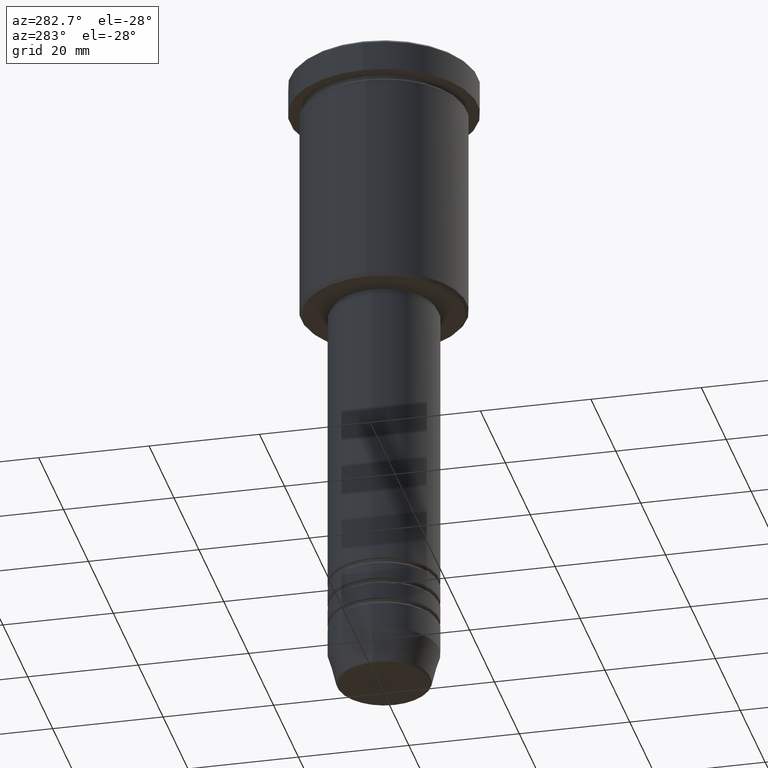
[diagram: clean part render]
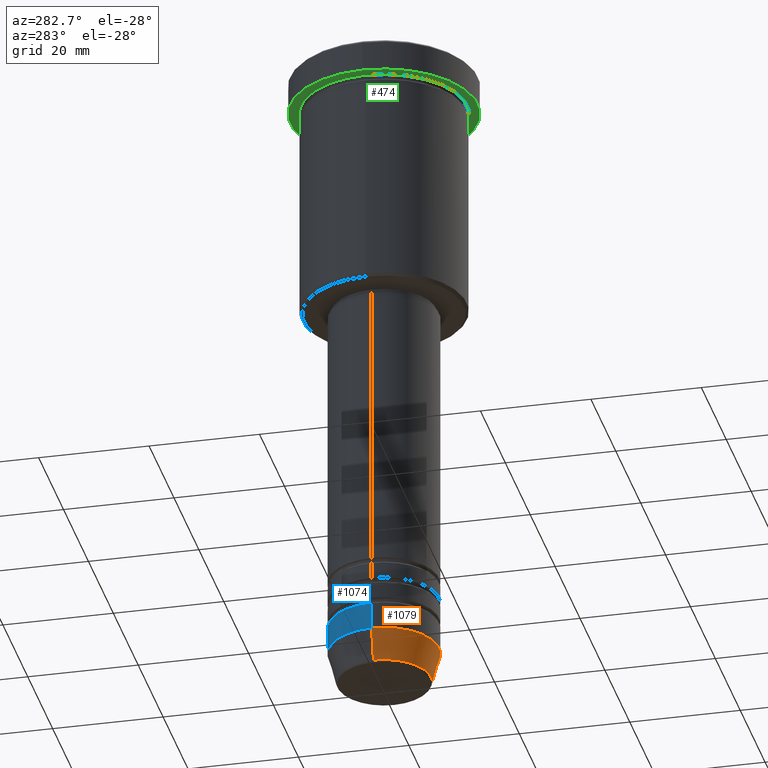
[diagram: same view with three faces highlighted in distinct colors, each labeled with its STEP entity id]
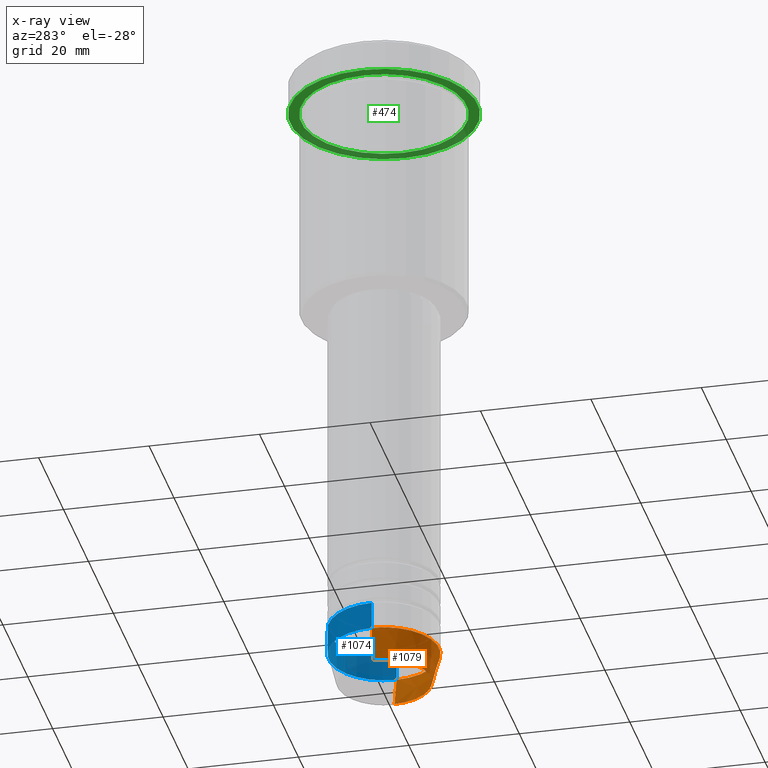
[diagram: x-ray of the same camera — body ghosted, the three highlighted faces saturated]
A machine part, auxiliary view with three faces highlighted in distinct colors.
The next image is the same camera in x-ray (body ghosted, the three faces saturated) — at least one of them is partly hidden behind the body in this view.
Their STEP definitions:

[orange] entity #1079 — the highlighted conical surface has half-angle 15 deg.
#6 = DIRECTION ( 'NONE',  ( 0.2588190451025214056, 0.000000000000000000, 0.9659258262890680902 ) ) ;
#23 = DIRECTION ( 'NONE',  ( -0.000000000000000000, -0.000000000000000000, 1.000000000000000000 ) ) ;
#116 = CARTESIAN_POINT ( 'NONE',  ( 10.00000000000000178, 0.000000000000000000, -113.9999999999999858 ) ) ;
#128 = ORIENTED_EDGE ( 'NONE', *, *, #1124, .F. ) ;
#141 = DIRECTION ( 'NONE',  ( -0.2588190451025214056, 3.169619151431772953E-17, 0.9659258262890680902 ) ) ;
#146 = DIRECTION ( 'NONE',  ( 1.000000000000000000, 0.000000000000000000, 0.000000000000000000 ) ) ;
#163 = LINE ( 'NONE', #956, #270 ) ;
#177 = CONICAL_SURFACE ( 'NONE', #307, 10.00000000000000178, 0.2617993877991501295 ) ;
#203 = DIRECTION ( 'NONE',  ( 1.000000000000000000, 0.000000000000000000, 0.000000000000000000 ) ) ;
#210 = VECTOR ( 'NONE', #6, 1000.000000000000000 ) ;
#270 = VECTOR ( 'NONE', #141, 1000.000000000000000 ) ;
#307 = AXIS2_PLACEMENT_3D ( 'NONE', #862, #23, #146 ) ;
#326 = ORIENTED_EDGE ( 'NONE', *, *, #599, .T. ) ;
#329 = AXIS2_PLACEMENT_3D ( 'NONE', #675, #1024, #203 ) ;
#331 = CARTESIAN_POINT ( 'NONE',  ( -8.491604264568312743, 1.132284198685156781E-15, -119.6294095225512564 ) ) ;
#341 = CARTESIAN_POINT ( 'NONE',  ( 8.491604264568312743, 0.000000000000000000, -119.6294095225512564 ) ) ;
#388 = ORIENTED_EDGE ( 'NONE', *, *, #1004, .T. ) ;
#418 = VERTEX_POINT ( 'NONE', #843 ) ;
#481 = FACE_OUTER_BOUND ( 'NONE', #665, .T. ) ;
#538 = VERTEX_POINT ( 'NONE', #636 ) ;
#594 = DIRECTION ( 'NONE',  ( -0.000000000000000000, -0.000000000000000000, 1.000000000000000000 ) ) ;
#599 = EDGE_CURVE ( 'NONE', #762, #681, #908, .T. ) ;
#636 = CARTESIAN_POINT ( 'NONE',  ( -10.00000000000000178, 1.224646799147353454E-15, -113.9999999999999858 ) ) ;
#665 = EDGE_LOOP ( 'NONE', ( #128, #326, #388, #939 ) ) ;
#675 = CARTESIAN_POINT ( 'NONE',  ( 0.000000000000000000, 0.000000000000000000, -113.9999999999999858 ) ) ;
#681 = VERTEX_POINT ( 'NONE', #341 ) ;
#732 = AXIS2_PLACEMENT_3D ( 'NONE', #796, #594, #978 ) ;
#762 = VERTEX_POINT ( 'NONE', #331 ) ;
#796 = CARTESIAN_POINT ( 'NONE',  ( 0.000000000000000000, 0.000000000000000000, -119.6294095225512564 ) ) ;
#843 = CARTESIAN_POINT ( 'NONE',  ( 10.00000000000000178, 0.000000000000000000, -113.9999999999999858 ) ) ;
#862 = CARTESIAN_POINT ( 'NONE',  ( 0.000000000000000000, 0.000000000000000000, -113.9999999999999858 ) ) ;
#908 = CIRCLE ( 'NONE', #732, 8.491604264568312743 ) ;
#939 = ORIENTED_EDGE ( 'NONE', *, *, #1036, .F. ) ;
#956 = CARTESIAN_POINT ( 'NONE',  ( -10.00000000000000178, 1.224646799147353454E-15, -113.9999999999999858 ) ) ;
#978 = DIRECTION ( 'NONE',  ( 1.000000000000000000, 0.000000000000000000, 0.000000000000000000 ) ) ;
#1004 = EDGE_CURVE ( 'NONE', #681, #418, #1047, .T. ) ;
#1024 = DIRECTION ( 'NONE',  ( -0.000000000000000000, -0.000000000000000000, 1.000000000000000000 ) ) ;
#1036 = EDGE_CURVE ( 'NONE', #538, #418, #1115, .T. ) ;
#1047 = LINE ( 'NONE', #116, #210 ) ;
#1079 = ADVANCED_FACE ( 'NONE', ( #481 ), #177, .T. ) ;
#1115 = CIRCLE ( 'NONE', #329, 10.00000000000000178 ) ;
#1124 = EDGE_CURVE ( 'NONE', #762, #538, #163, .T. ) ;

[blue] entity #1074 — the highlighted cylindrical surface (partial cylindrical patch) has radius 10 mm, axis along (-0, -0, 1).
#56 = CARTESIAN_POINT ( 'NONE',  ( 0.000000000000000000, 0.000000000000000000, -108.9999999999999858 ) ) ;
#61 = AXIS2_PLACEMENT_3D ( 'NONE', #206, #563, #114 ) ;
#103 = DIRECTION ( 'NONE',  ( -0.000000000000000000, -0.000000000000000000, 1.000000000000000000 ) ) ;
#111 = VERTEX_POINT ( 'NONE', #693 ) ;
#114 = DIRECTION ( 'NONE',  ( 1.000000000000000000, 0.000000000000000000, 0.000000000000000000 ) ) ;
#135 = CARTESIAN_POINT ( 'NONE',  ( -10.00000000000000000, 1.224646799147353256E-15, -108.9999999999999858 ) ) ;
#206 = CARTESIAN_POINT ( 'NONE',  ( 0.000000000000000000, 0.000000000000000000, 0.000000000000000000 ) ) ;
#208 = EDGE_CURVE ( 'NONE', #538, #709, #431, .T. ) ;
#219 = DIRECTION ( 'NONE',  ( 1.000000000000000000, 0.000000000000000000, 0.000000000000000000 ) ) ;
#225 = EDGE_CURVE ( 'NONE', #111, #709, #1025, .T. ) ;
#248 = DIRECTION ( 'NONE',  ( -0.000000000000000000, -0.000000000000000000, 1.000000000000000000 ) ) ;
#252 = AXIS2_PLACEMENT_3D ( 'NONE', #56, #977, #219 ) ;
#320 = ORIENTED_EDGE ( 'NONE', *, *, #208, .T. ) ;
#418 = VERTEX_POINT ( 'NONE', #843 ) ;
#431 = LINE ( 'NONE', #884, #499 ) ;
#454 = EDGE_LOOP ( 'NONE', ( #894, #320, #711, #1158 ) ) ;
#469 = DIRECTION ( 'NONE',  ( 1.000000000000000000, 0.000000000000000000, 0.000000000000000000 ) ) ;
#499 = VECTOR ( 'NONE', #931, 1000.000000000000000 ) ;
#538 = VERTEX_POINT ( 'NONE', #636 ) ;
#563 = DIRECTION ( 'NONE',  ( -0.000000000000000000, -0.000000000000000000, 1.000000000000000000 ) ) ;
#565 = EDGE_CURVE ( 'NONE', #418, #538, #895, .T. ) ;
#636 = CARTESIAN_POINT ( 'NONE',  ( -10.00000000000000178, 1.224646799147353454E-15, -113.9999999999999858 ) ) ;
#639 = EDGE_CURVE ( 'NONE', #418, #111, #1151, .T. ) ;
#662 = FACE_OUTER_BOUND ( 'NONE', #454, .T. ) ;
#693 = CARTESIAN_POINT ( 'NONE',  ( 10.00000000000000000, 0.000000000000000000, -108.9999999999999858 ) ) ;
#709 = VERTEX_POINT ( 'NONE', #135 ) ;
#711 = ORIENTED_EDGE ( 'NONE', *, *, #225, .F. ) ;
#843 = CARTESIAN_POINT ( 'NONE',  ( 10.00000000000000178, 0.000000000000000000, -113.9999999999999858 ) ) ;
#874 = AXIS2_PLACEMENT_3D ( 'NONE', #935, #103, #469 ) ;
#884 = CARTESIAN_POINT ( 'NONE',  ( -10.00000000000000178, 1.224646799147353454E-15, 0.000000000000000000 ) ) ;
#894 = ORIENTED_EDGE ( 'NONE', *, *, #565, .T. ) ;
#895 = CIRCLE ( 'NONE', #874, 10.00000000000000178 ) ;
#931 = DIRECTION ( 'NONE',  ( -0.000000000000000000, -0.000000000000000000, 1.000000000000000000 ) ) ;
#935 = CARTESIAN_POINT ( 'NONE',  ( 0.000000000000000000, 0.000000000000000000, -113.9999999999999858 ) ) ;
#977 = DIRECTION ( 'NONE',  ( -0.000000000000000000, -0.000000000000000000, 1.000000000000000000 ) ) ;
#1025 = CIRCLE ( 'NONE', #252, 10.00000000000000000 ) ;
#1032 = CYLINDRICAL_SURFACE ( 'NONE', #61, 10.00000000000000178 ) ;
#1065 = VECTOR ( 'NONE', #248, 1000.000000000000000 ) ;
#1074 = ADVANCED_FACE ( 'NONE', ( #662 ), #1032, .T. ) ;
#1081 = CARTESIAN_POINT ( 'NONE',  ( 10.00000000000000178, 0.000000000000000000, 0.000000000000000000 ) ) ;
#1151 = LINE ( 'NONE', #1081, #1065 ) ;
#1158 = ORIENTED_EDGE ( 'NONE', *, *, #639, .F. ) ;

[green] entity #474 — the highlighted planar face has unit normal (0, 0, -1).
#90 = VERTEX_POINT ( 'NONE', #105 ) ;
#104 = DIRECTION ( 'NONE',  ( -0.000000000000000000, -0.000000000000000000, 1.000000000000000000 ) ) ;
#105 = CARTESIAN_POINT ( 'NONE',  ( -17.00000000000000000, 2.081899558550500280E-15, -5.999999999999994671 ) ) ;
#107 = EDGE_CURVE ( 'NONE', #997, #139, #816, .T. ) ;
#139 = VERTEX_POINT ( 'NONE', #335 ) ;
#167 = DIRECTION ( 'NONE',  ( 0.000000000000000000, 0.000000000000000000, -1.000000000000000000 ) ) ;
#286 = DIRECTION ( 'NONE',  ( 1.000000000000000000, 0.000000000000000000, 0.000000000000000000 ) ) ;
#312 = ORIENTED_EDGE ( 'NONE', *, *, #746, .F. ) ;
#315 = ORIENTED_EDGE ( 'NONE', *, *, #107, .T. ) ;
#335 = CARTESIAN_POINT ( 'NONE',  ( -15.00000000000000000, 0.000000000000000000, -5.999999999999994671 ) ) ;
#346 = EDGE_CURVE ( 'NONE', #1049, #90, #461, .T. ) ;
#350 = AXIS2_PLACEMENT_3D ( 'NONE', #901, #414, #805 ) ;
#358 = CARTESIAN_POINT ( 'NONE',  ( 0.000000000000000000, 17.00000000000000000, -5.999999999999994671 ) ) ;
#414 = DIRECTION ( 'NONE',  ( -0.000000000000000000, -0.000000000000000000, 1.000000000000000000 ) ) ;
#437 = EDGE_LOOP ( 'NONE', ( #577, #312 ) ) ;
#448 = EDGE_CURVE ( 'NONE', #139, #997, #1041, .T. ) ;
#458 = DIRECTION ( 'NONE',  ( -1.000000000000000000, 0.000000000000000000, 0.000000000000000000 ) ) ;
#461 = CIRCLE ( 'NONE', #1103, 17.00000000000000000 ) ;
#474 = ADVANCED_FACE ( 'NONE', ( #984, #530 ), #808, .T. ) ;
#508 = CARTESIAN_POINT ( 'NONE',  ( 0.000000000000000000, 0.000000000000000000, -5.999999999999994671 ) ) ;
#530 = FACE_OUTER_BOUND ( 'NONE', #437, .T. ) ;
#555 = CARTESIAN_POINT ( 'NONE',  ( 17.00000000000000000, 0.000000000000000000, -5.999999999999994671 ) ) ;
#572 = EDGE_LOOP ( 'NONE', ( #854, #315 ) ) ;
#577 = ORIENTED_EDGE ( 'NONE', *, *, #346, .F. ) ;
#607 = DIRECTION ( 'NONE',  ( -0.000000000000000000, -0.000000000000000000, 1.000000000000000000 ) ) ;
#666 = CARTESIAN_POINT ( 'NONE',  ( 15.00000000000000000, 1.836970198721029589E-15, -5.999999999999994671 ) ) ;
#746 = EDGE_CURVE ( 'NONE', #90, #1049, #1039, .T. ) ;
#777 = DIRECTION ( 'NONE',  ( -1.000000000000000000, 0.000000000000000000, 0.000000000000000000 ) ) ;
#805 = DIRECTION ( 'NONE',  ( 1.000000000000000000, 0.000000000000000000, 0.000000000000000000 ) ) ;
#808 = PLANE ( 'NONE',  #1069 ) ;
#816 = CIRCLE ( 'NONE', #1068, 15.00000000000000000 ) ;
#854 = ORIENTED_EDGE ( 'NONE', *, *, #448, .T. ) ;
#901 = CARTESIAN_POINT ( 'NONE',  ( 0.000000000000000000, 0.000000000000000000, -5.999999999999994671 ) ) ;
#967 = DIRECTION ( 'NONE',  ( -0.000000000000000000, -0.000000000000000000, 1.000000000000000000 ) ) ;
#984 = FACE_BOUND ( 'NONE', #572, .T. ) ;
#997 = VERTEX_POINT ( 'NONE', #666 ) ;
#1039 = CIRCLE ( 'NONE', #350, 17.00000000000000000 ) ;
#1041 = CIRCLE ( 'NONE', #1134, 15.00000000000000000 ) ;
#1044 = CARTESIAN_POINT ( 'NONE',  ( 0.000000000000000000, 0.000000000000000000, -5.999999999999994671 ) ) ;
#1049 = VERTEX_POINT ( 'NONE', #555 ) ;
#1068 = AXIS2_PLACEMENT_3D ( 'NONE', #1044, #607, #777 ) ;
#1069 = AXIS2_PLACEMENT_3D ( 'NONE', #358, #167, #1166 ) ;
#1103 = AXIS2_PLACEMENT_3D ( 'NONE', #508, #967, #286 ) ;
#1134 = AXIS2_PLACEMENT_3D ( 'NONE', #1174, #104, #458 ) ;
#1166 = DIRECTION ( 'NONE',  ( -1.000000000000000000, 0.000000000000000000, -0.000000000000000000 ) ) ;
#1174 = CARTESIAN_POINT ( 'NONE',  ( 0.000000000000000000, 0.000000000000000000, -5.999999999999994671 ) ) ;